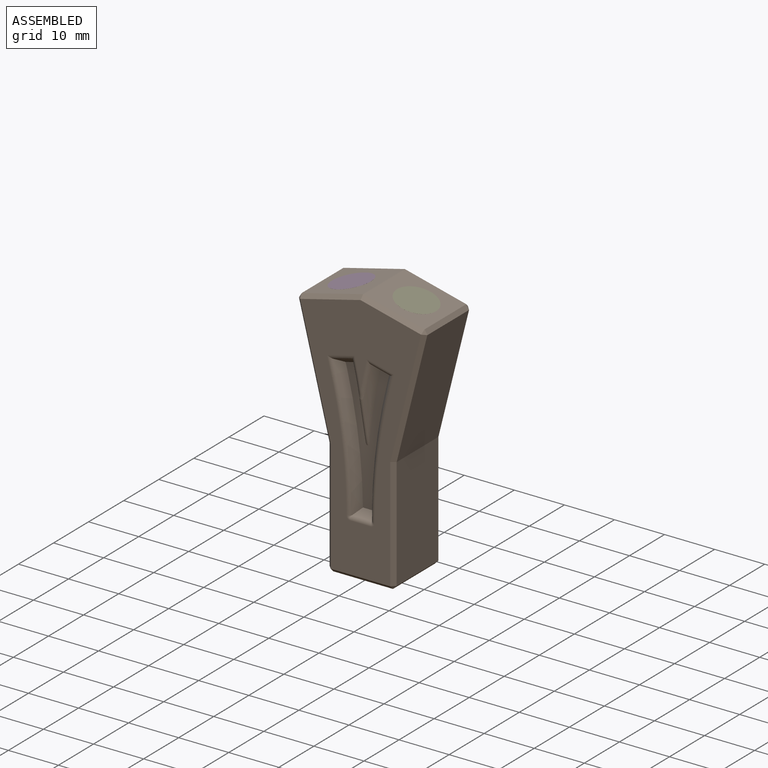
[diagram: assembled view]
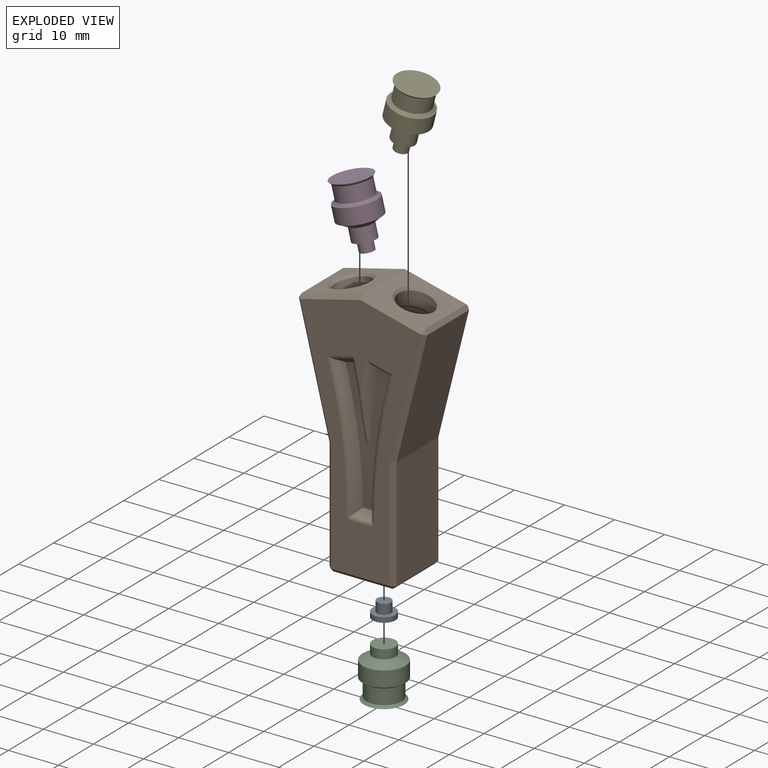
[diagram: exploded view]
GUIDED TOUR — FREECAD ASSEMBLY "Y splitter"

This assembly has 5 components, labeled P0..P4 below (a component is one placed body or linked part; the same part can appear more than once), held together by 0 modeled joints plus 5 derived contact edges. A joint is a constraint between two components; its type names the relative motion it leaves free:
  CONTACT — a derived adjacency edge — the two components touch in the source model (clearance under 2% of the assembly's diagonal); it is measured from the geometry, not a modeled constraint.
Axis/direction vectors are unit vectors and 'through' points are millimeter coordinates, both in the assembly's world frame.

MATES
  1. CONTACT "contact_0_1": P0 <-> P1, contact direction (0.000, 0.000, 1.000) through (-1.40, 0.07, 11.00) mm (derived from contact, not a modeled constraint)
  2. CONTACT "contact_0_2": P0 <-> P2, contact direction (0.000, 0.000, -1.000) through (2.30, -0.11, 10.00) mm (derived from contact, not a modeled constraint)
  3. CONTACT "contact_1_2": P1 <-> P2, contact direction (0.000, 0.000, -1.000) through (3.50, 0.00, 0.49) mm (derived from contact, not a modeled constraint)
  4. CONTACT "contact_1_3": P1 <-> P3, contact direction (0.000, 0.000, 1.000) through (-9.77, 0.17, 48.68) mm (derived from contact, not a modeled constraint)
  5. CONTACT "contact_1_4": P1 <-> P4, contact direction (0.000, 0.000, 1.000) through (9.71, 0.69, 48.69) mm (derived from contact, not a modeled constraint)

ASSEMBLY ORDER
  1. P1 — the base component [order heuristic]
  2. P3 — core [order heuristic]
  3. P4 — core [order heuristic]
  4. P0 [order verified]
  5. P2 — core [order heuristic]
Order-tag legend:
  [order verified] — this step's position reverses a verified removal order: the component was checked to insert without passing through the ones already placed.
  [order heuristic] — the first 4 components form the assembly's core: parts whose collision-free extraction could not be verified, listed in mate-graph order.

Of the 5 components, 2 carry a construction recipe — the FreeCAD feature program (sketches with constraints, then the solid features that consume them) that regenerates the part from scratch, quoted from this document or from the linked companion document it references; the rest are supplied as boundary geometry only. The tour below walks the components in assembly order: each is shown spotlighted twice — in the assembled view, then in the exploded view, where a leader line traces a displaced component back to its assembled socket (components that stay in place when exploded have no leader line; saturated green if recipe-attached, orange if geometry-only; every other component desaturated gray) — followed by its recipe or geometry summary and the mates that hold it.
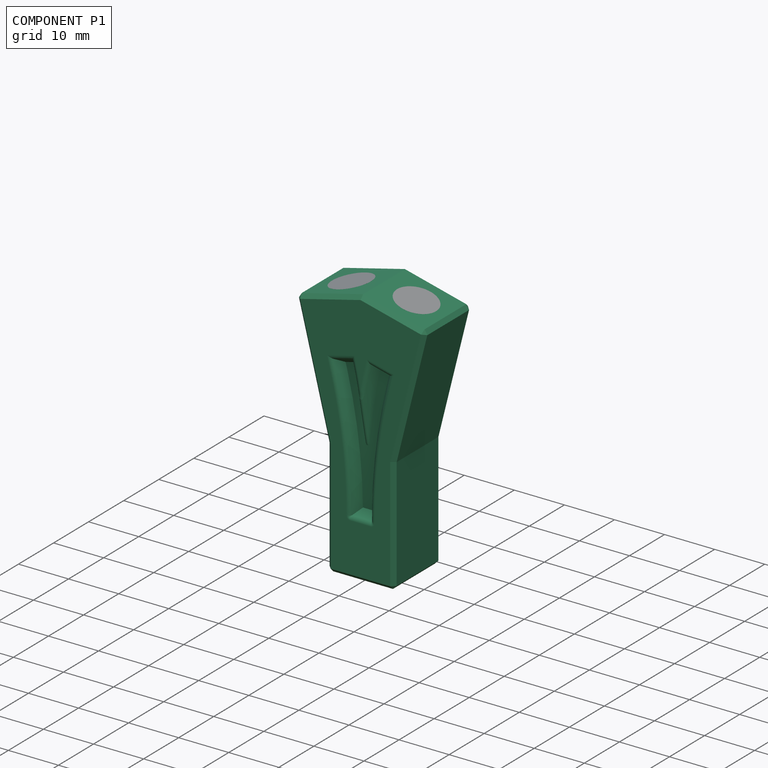
[diagram: component P1 — assembled]
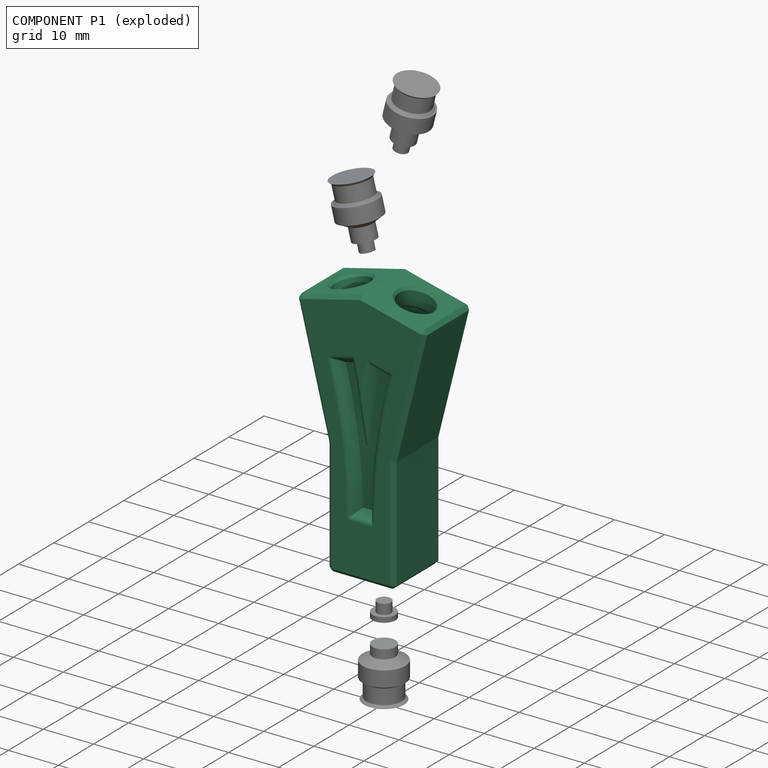
[diagram: component P1 — exploded]
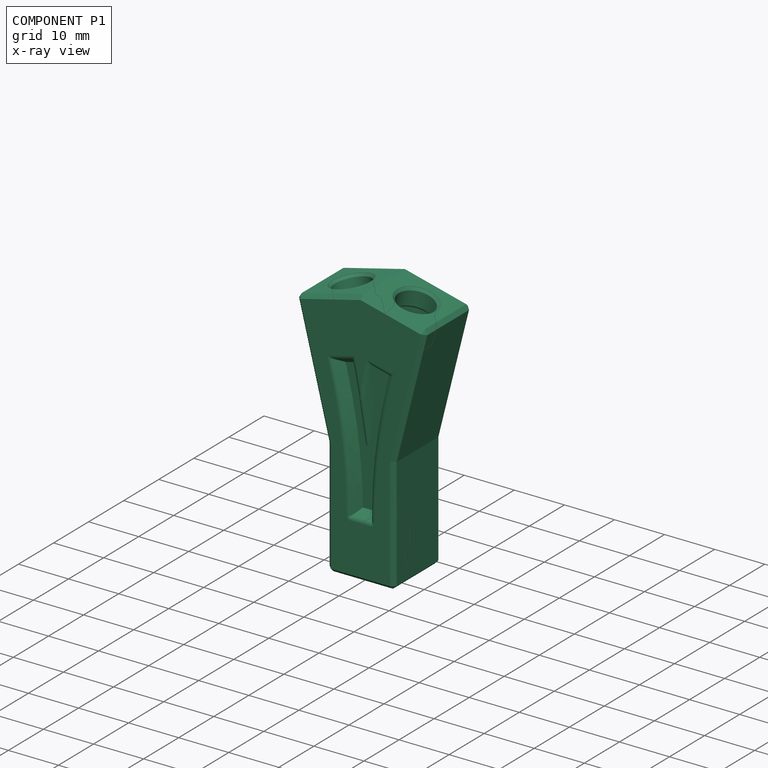
[diagram: component P1 — x-ray view]
COMPONENT P1 — recipe-attached ("Y splitter", modeled in this document).
Held by: resting contact with P0 (derived edge); resting contact with P2 (derived edge); resting contact with P3 (derived edge); resting contact with P4 (derived edge).
Construction recipe (the document's own serialized feature program — sketch geometry with constraints, then the solid features built on it; lengths are millimeters unless a unit is written):

FEATURE [Sketcher::SketchObject] Sketch004
  ArcFitTolerance = 1e-06
  AttachmentSupport = -> [XZ_Plane001]
  FullyConstrained = true
  MakeInternals = false
  MapMode = 5
  Placement = pos=(0,0,0) rot=(1,0,0;1.5708rad)
  sketch-geometry (4):
    g0: ArcOfCircle CenterX=11.0191 CenterY=12 CenterZ=0 NormalX=0 NormalY=0 NormalZ=1 AngleXU=0 Radius=9.61914 StartAngle=2.75732 EndAngle=3.14159
    g1: ArcOfCircle CenterX=26.5657 CenterY=5.71338 CenterZ=0 NormalX=0 NormalY=0 NormalZ=1 AngleXU=0 Radius=26.3886 StartAngle=2.61799 EndAngle=2.75732
    g2: LineSegment [constr] StartX=1.4 StartY=12 StartZ=0 EndX=2.10151 EndY=15.6061 EndZ=0
    g3: LineSegment [constr] StartX=2.10151 StartY=15.6061 StartZ=0 EndX=3.71243 EndY=18.9077 EndZ=0
  constraints (8):
    c: Tangent(g0,g-5) = 1.5708
    c: Tangent(g1,g-6) = 1.5708
    c: Tangent(g0,g1) = -1.5708
    c: Coincident(g2,g0)
    c: Coincident(g2,g0)
    c: Coincident(g3,g0)
    c: Coincident(g3,g1)
    c: Equal(g3,g2)
FEATURE [Sketcher::SketchObject] Sketch005
  ArcFitTolerance = 1e-06
  AttachmentSupport = -> [XZ_Plane001]
  FullyConstrained = true
  MakeInternals = false
  MapMode = 5
  Placement = pos=(0,0,0) rot=(1,0,0;1.5708rad)
  sketch-geometry (4):
    g0: ArcOfCircle CenterX=-26.5658 CenterY=5.71328 CenterZ=0 NormalX=0 NormalY=0 NormalZ=1 AngleXU=0 Radius=26.3888 StartAngle=0.384273 EndAngle=0.523599
    g1: ArcOfCircle CenterX=-11.0191 CenterY=12 CenterZ=0 NormalX=0 NormalY=0 NormalZ=1 AngleXU=0 Radius=9.61912 StartAngle=2e-16 EndAngle=0.384273
    g2: LineSegment [constr] StartX=-1.4 StartY=12 StartZ=0 EndX=-2.10151 EndY=15.6061 EndZ=0
    g3: LineSegment [constr] StartX=-2.10151 StartY=15.6061 StartZ=0 EndX=-3.71244 EndY=18.9077 EndZ=0
  constraints (9):
    c: Tangent(g1,g-3) = 1.5708
    c: Tangent(g0,g-4) = 1.5708
    c: Coincident(g0,g1)
    c: Tangent(g1,g0,g0) = -1.5708
    c: Coincident(g2,g1)
    c: Coincident(g2,g0)
    c: Coincident(g3,g0)
    c: Coincident(g3,g0)
    c: Equal(g2,g3)
FEATURE [PartDesign::SubShapeBinder] Binder001
  BindCopyOnChange = 0
  BindMode = 0
  ClaimChildren = false
  Context = -> Body001 [Binder001.]
  Fuse = false
  MakeFace = true
  OffsetFill = false
  OffsetIntersection = false
  OffsetJoinType = 0
  OffsetOpenResult = false
  PartialLoad = false
  Refine = true
  Relative = true
  Support = -> [Fusion[Face1]]
  _Version = 2
FEATURE [PartDesign::SubShapeBinder] Binder002
  BindCopyOnChange = 0
  BindMode = 0
  ClaimChildren = false
  Context = -> Body001 [Binder002.]
  Fuse = false
  MakeFace = true
  OffsetFill = false
  OffsetIntersection = false
  OffsetJoinType = 0
  OffsetOpenResult = false
  PartialLoad = false
  Refine = true
  Relative = true
  Support = -> [Link001[Face1]]
  _Version = 2
FEATURE [PartDesign::SubShapeBinder] Binder003
  BindCopyOnChange = 0
  BindMode = 0
  ClaimChildren = false
  Context = -> Body001 [Binder003.]
  Fuse = false
  MakeFace = true
  OffsetFill = false
  OffsetIntersection = false
  OffsetJoinType = 0
  OffsetOpenResult = false
  PartialLoad = false
  Refine = true
  Relative = true
  Support = -> [Link002[Face1]]
  _Version = 2
FEATURE [Sketcher::SketchObject] Sketch003
  ArcFitTolerance = 1e-06
  AttachmentSupport = -> [XZ_Plane001]
  ExternalGeometry = -> [Binder002,Binder003,Binder001]
  FullyConstrained = true
  MakeInternals = false
  MapMode = 5
  Placement = pos=(0,0,0) rot=(1,0,0;1.5708rad)
  sketch-geometry (18):
    g0: LineSegment StartX=-12.9952 StartY=48.3703 StartZ=0 EndX=-10.3691 EndY=49.025 EndZ=0
    g1: LineSegment StartX=-10.3691 StartY=49.025 StartZ=0 EndX=-2.6261 EndY=50.9556 EndZ=0
    g2: LineSegment StartX=-2.6261 StartY=50.9556 StartZ=0 EndX=0 EndY=51.6103 EndZ=0
    g3: LineSegment StartX=0 StartY=51.6103 StartZ=0 EndX=2.6261 EndY=50.9556 EndZ=0
    g4: LineSegment StartX=2.6261 StartY=50.9556 StartZ=0 EndX=10.3691 EndY=49.025 EndZ=0
    g5: LineSegment StartX=10.3691 StartY=49.025 StartZ=0 EndX=12.9952 EndY=48.3703 EndZ=0
    g6: LineSegment [constr] StartX=10.3691 StartY=49.025 StartZ=0 EndX=10.3715 EndY=49.0347 EndZ=0
    g7: LineSegment [constr] StartX=2.6261 StartY=50.9556 StartZ=0 EndX=2.62852 EndY=50.9653 EndZ=0
    g8: LineSegment [constr] StartX=-2.6261 StartY=50.9556 StartZ=0 EndX=-2.62852 EndY=50.9653 EndZ=0
    g9: LineSegment [constr] StartX=-10.3691 StartY=49.025 StartZ=0 EndX=-10.3715 EndY=49.0347 EndZ=0
    g10: LineSegment StartX=-6.6965 StartY=0.01 StartZ=0 EndX=-3.99 EndY=0.01 EndZ=0
    g11: LineSegment StartX=-3.99 StartY=0.01 StartZ=0 EndX=3.99 EndY=0.01 EndZ=0
    g12: LineSegment StartX=3.99 StartY=0.01 StartZ=0 EndX=6.6965 EndY=0.01 EndZ=0
    g13: LineSegment [constr] StartX=3.99 StartY=0 StartZ=0 EndX=3.99 EndY=0.01 EndZ=0
    g14: LineSegment StartX=6.6965 StartY=0.01 StartZ=0 EndX=6.6965 EndY=23.1077 EndZ=0
    g15: LineSegment StartX=12.9952 StartY=48.3703 StartZ=0 EndX=6.6965 EndY=23.1077 EndZ=0
    g16: LineSegment StartX=-12.9952 StartY=48.3703 StartZ=0 EndX=-6.6965 EndY=23.1077 EndZ=0
    g17: LineSegment StartX=-6.6965 StartY=23.1077 StartZ=0 EndX=-6.6965 EndY=0.01 EndZ=0
  constraints (51):
    c: Coincident(g2,g1)
    c: PointOnObject(g2,g-2)
    c: Coincident(g3,g2)
    c: Coincident(g4,g3)
    c: Coincident(g5,g4)
    c: Parallel(g5,g4)
    c: Parallel(g4,g3)
    c: Parallel(g2,g1)
    c: Parallel(g1,g0)
    c: Coincident(g0,g1)
    c: Coincident(g6,g4)
    c: Coincident(g6,g-4)
    c: Coincident(g7,g3)
    c: Coincident(g7,g-4)
    c: Coincident(g8,g1)
    c: Coincident(g8,g-3)
    c: Coincident(g9,g0)
    c: Coincident(g9,g-3)
    c: Parallel(g1,g-3)
    c: Parallel(g4,g-4)
    c: Perpendicular(g1,g9)
    c: Perpendicular(g1,g8)
    c: Perpendicular(g4,g7)
    c: Perpendicular(g4,g6)
    c: Equal(g3,g5)
    c: Horizontal(g10)
    c: Coincident(g11,g10)
    c: Horizontal(g11)
    c: Coincident(g12,g11)
    c: Horizontal(g12)
    c: Vertical(g10,g-5)
    c: Vertical(g-5,g11)
    c: Equal(g12,g10)
    c: Equal(g10,g5)
    c: Coincident(g13,g-5)
    c: Coincident(g13,g11)
    c: Coincident(g14,g12)
    c: Vertical(g14)
    c: Coincident(g15,g5)
    c: Coincident(g15,g14)
    c: Perpendicular(g15,g5)
    c: Equal(g0,g2)
    c: Coincident(g16,g0)
    c: Coincident(g17,g16)
    c: Coincident(g17,g10)
    c: Vertical(g17)
    c: Equal(g17,g14)
    c: Equal(g13,g7)
    c: DistanceY(g13,g13) = 0.01
    c: Distance(g12,g12) = 2.7065
    c: Distance(g10,g12) = 13.393  'height'
FEATURE [PartDesign::Pad] Pad002
  Direction = (0,-1,2e-16)
  Length = 6.6965
  Length2 = 10
  Placement = pos=(0,0,0) rot=(1,0,0;1.5708rad)
  Profile = -> Sketch003
  ReferenceAxis = -> Sketch003 [N_Axis]
  Refine = true
  Reversed = true
  Suppressed = false
  Type = 0
  expr: Length = <<Sketch003>>.Constraints.height / 2
FEATURE [PartDesign::Boolean] Boolean
  BaseFeature = -> Pad002
  Group = -> [Binder004]
  Refine = true
  Suppressed = false
  Type = 1
  UsePlacement = true
FEATURE [PartDesign::Boolean] Boolean001
  BaseFeature = -> Boolean
  Group = -> [Binder005]
  Refine = true
  Suppressed = false
  Type = 1
  UsePlacement = true
FEATURE [Sketcher::SketchObject] Sketch007
  ArcFitTolerance = 1e-06
  AttachmentSupport = -> [XZ_Plane001]
  ExternalGeometry = -> [Boolean001]
  FullyConstrained = true
  MakeInternals = false
  MapMode = 5
  Placement = pos=(0,0,0) rot=(1,0,0;1.5708rad)
  sketch-geometry (2):
    g0: ArcOfCircle CenterX=89.0171 CenterY=13 CenterZ=0 NormalX=0 NormalY=0 NormalZ=1 AngleXU=0 Radius=87.6171 StartAngle=2.89725 EndAngle=3.14159
    g1: LineSegment StartX=4.71343 StartY=37.0475 StartZ=0 EndX=4.0026 EndY=34.1965 EndZ=0
  constraints (4):
    c: Tangent(g0,g-4) = 1.5708
    c: Coincident(g1,g-3)
    c: Parallel(g-3,g1)
    c: Tangent(g1,g0) = -1.5708
FEATURE [PartDesign::SubtractivePipe] SubtractivePipe
  AuxilleryCurvelinear = true
  AuxillerySpineTangent = false
  BaseFeature = -> Boolean001
  Binormal = (0,0,0)
  Mode = 0
  Profile = -> Boolean001 [Face31]
  Refine = true
  Spine = -> Sketch007
  SpineTangent = false
  Suppressed = false
  Transformation = 0
  Transition = 0
FEATURE [Sketcher::SketchObject] Sketch008
  ArcFitTolerance = 1e-06
  AttachmentSupport = -> [XZ_Plane001]
  FullyConstrained = false
  MakeInternals = false
  MapMode = 5
  Placement = pos=(0,0,0) rot=(1,0,0;1.5708rad)
  sketch-geometry (4):
    g0: LineSegment StartX=0 StartY=-5.19196 StartZ=0 EndX=0 EndY=56.8249 EndZ=0
    g1: LineSegment StartX=0 StartY=56.8249 StartZ=0 EndX=-56.2911 EndY=56.8249 EndZ=0
    g2: LineSegment StartX=-56.2911 StartY=56.8249 StartZ=0 EndX=-56.2911 EndY=-5.19196 EndZ=0
    g3: LineSegment StartX=-56.2911 StartY=-5.19196 StartZ=0 EndX=0 EndY=-5.19196 EndZ=0
  constraints (9):
    c: Coincident(g0,g1)
    c: Coincident(g1,g2)
    c: Coincident(g2,g3)
    c: Coincident(g3,g0)
    c: Vertical(g0)
    c: Vertical(g2)
    c: Horizontal(g1)
    c: Horizontal(g3)
    c: PointOnObject(g0,g-2)
FEATURE [PartDesign::Pocket] Pocket
  BaseFeature = -> SubtractivePipe
  Direction = (0,1,-2e-16)
  Length = 5
  Length2 = 5
  Midplane = true
  Profile = -> Sketch008
  ReferenceAxis = -> Sketch008 [N_Axis]
  Refine = true
  Suppressed = false
  Type = 1
FEATURE [PartDesign::Mirrored] Mirrored
  BaseFeature = -> Pocket
  MirrorPlane = -> YZ_Plane001
  Refine = true
  Suppressed = false
  TransformMode = 1
FEATURE [Sketcher::SketchObject] Sketch009
  ArcFitTolerance = 1e-06
  AttachmentSupport = -> [Mirrored]
  ExternalGeometry = -> [Mirrored]
  FullyConstrained = true
  MakeInternals = false
  MapMode = 5
  Placement = pos=(0,6.6965,-1.5e-15) rot=(0,0.707107,0.707107;3.14159rad)
  sketch-geometry (9):
    g0: LineSegment StartX=-1.60718 StartY=39.8832 StartZ=0 EndX=-6.07054 EndY=38.7703 EndZ=0
    g1: ArcOfCircle CenterX=-105.306 CenterY=11 CenterZ=0 NormalX=0 NormalY=0 NormalZ=1 AngleXU=0 Radius=103.006 StartAngle=0 EndAngle=0.244346
    g2: ArcOfCircle CenterX=105.306 CenterY=11 CenterZ=0 NormalX=0 NormalY=0 NormalZ=1 AngleXU=0 Radius=103.006 StartAngle=2.89725 EndAngle=3.14159
    g3: LineSegment StartX=5.35971 StartY=35.9194 StartZ=0 EndX=6.07054 EndY=38.7703 EndZ=0
    g4: LineSegment StartX=-5.35971 StartY=35.9194 StartZ=0 EndX=-6.07054 EndY=38.7703 EndZ=0
    g5: LineSegment StartX=1.60718 StartY=39.8832 StartZ=0 EndX=6.07054 EndY=38.7703 EndZ=0
    g6: ArcOfCircle CenterX=-101.553 CenterY=14.9638 CenterZ=0 NormalX=0 NormalY=0 NormalZ=1 AngleXU=0 Radius=103.006 StartAngle=0.168135 EndAngle=0.244346
    g7: ArcOfCircle CenterX=101.553 CenterY=14.9638 CenterZ=0 NormalX=0 NormalY=0 NormalZ=1 AngleXU=0 Radius=103.006 StartAngle=2.89725 EndAngle=2.97346
    g8: LineSegment StartX=-2.3 StartY=11 StartZ=0 EndX=2.3 EndY=11 EndZ=0
  constraints (21):
    c: Coincident(g0,g-7)
    c: Coincident(g0,g-3)
    c: Tangent(g-6,g2) = -1.5708
    c: Tangent(g-9,g1) = 1.5708
    c: Coincident(g3,g-4)
    c: Coincident(g4,g0)
    c: Coincident(g5,g-8)
    c: Coincident(g5,g3)
    c: Tangent(g3,g2) = 1.5708
    c: Tangent(g4,g1) = -1.5708
    c: Parallel(g-3,g4)
    c: Coincident(g6,g0)
    c: Coincident(g7,g5)
    c: Coincident(g7,g6)
    c: PointOnObject(g6,g-2)
    c: Equal(g6,g7)
    c: Equal(g7,g1)
    c: Coincident(g8,g1)
    c: Coincident(g8,g2)
    c: Parallel(g3,g-4)
    c: Perpendicular(g7,g5)
FEATURE [PartDesign::Pocket] Pocket001
  BaseFeature = -> Mirrored
  Direction = (0,-1,2e-16)
  Length = 2
  Length2 = 5
  Profile = -> Sketch009
  ReferenceAxis = -> Sketch009 [N_Axis]
  Refine = true
  Suppressed = false
  TaperAngle = -35
  Type = 0
FEATURE [PartDesign::Fillet] Fillet
  Base = -> Pocket001 [Edge45,Edge47,Edge39,Edge41,Edge43,Edge44,Edge40]
  BaseFeature = -> Pocket001
  Radius = 1
  Refine = true
  SupportTransform = false
  Suppressed = false
  UseAllEdges = false
FEATURE [PartDesign::Mirrored] Mirrored001
  BaseFeature = -> Fillet
  MirrorPlane = -> XZ_Plane001
  Originals = -> [Fillet]
  Refine = true
  Suppressed = false
  TransformMode = 1
FEATURE [PartDesign::Chamfer] Chamfer
  Angle = 45
  Base = -> Mirrored001 [Edge130,Edge128,Edge132,Edge131,Edge129,Edge127,Edge111,Edge109,Edge110,Edge183,Edge59,Edge61,Edge63,Edge65,Edge64,Edge62,Edge60,Edge182]
  BaseFeature = -> Mirrored001
  ChamferType = 0
  FlipDirection = false
  Refine = true
  Size = 0.75
  Size2 = 1
  SupportTransform = false
  Suppressed = false
  UseAllEdges = false
FEATURE [PartDesign::Fillet] Fillet001
  Base = -> Chamfer [Edge216,Edge97]
  BaseFeature = -> Chamfer
  Radius = 0.5
  Refine = true
  SupportTransform = false
  Suppressed = false
  UseAllEdges = false
FEATURE [PartDesign::Body] Body001  label="Y splitter"
  AllowCompound = true
  Group = -> [Sketch003,Sketch004,Sketch005,Binder001,Binder002,Binder003,Pad002,Boolean,Boolean001,Sketch007,SubtractivePipe,Sketch008,Pocket,Mirrored,Sketch009,Pocket001,Fillet,Mirrored001,Chamfer,Fillet001]
  Origin = -> Origin001
  Tip = -> Fillet001
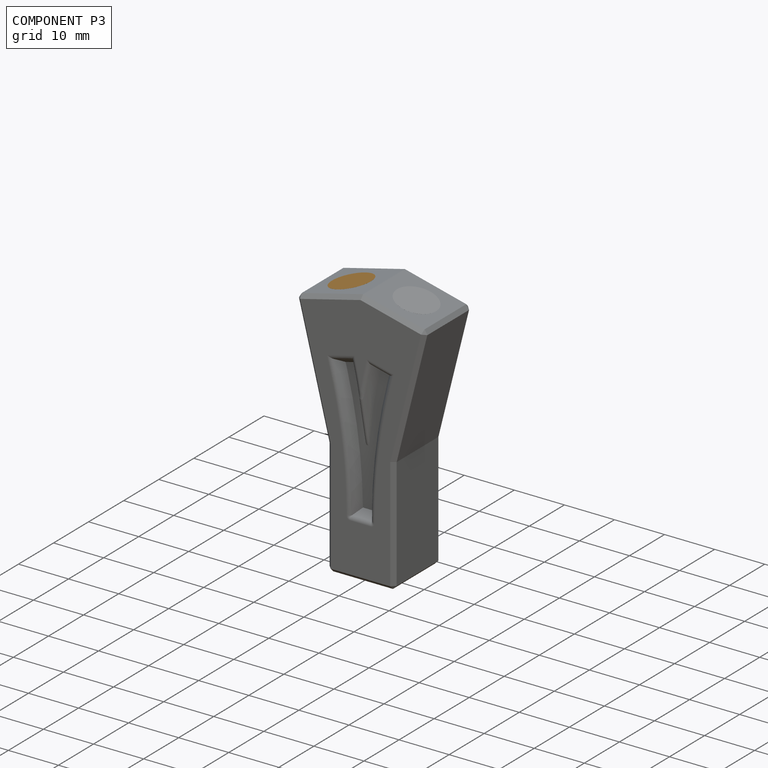
[diagram: component P3 — assembled]
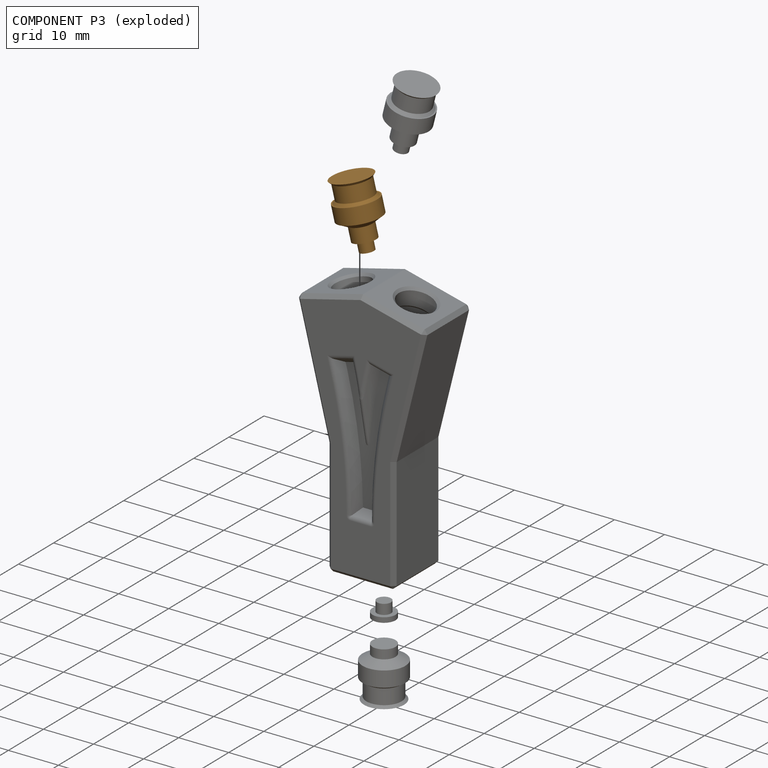
[diagram: component P3 — exploded]
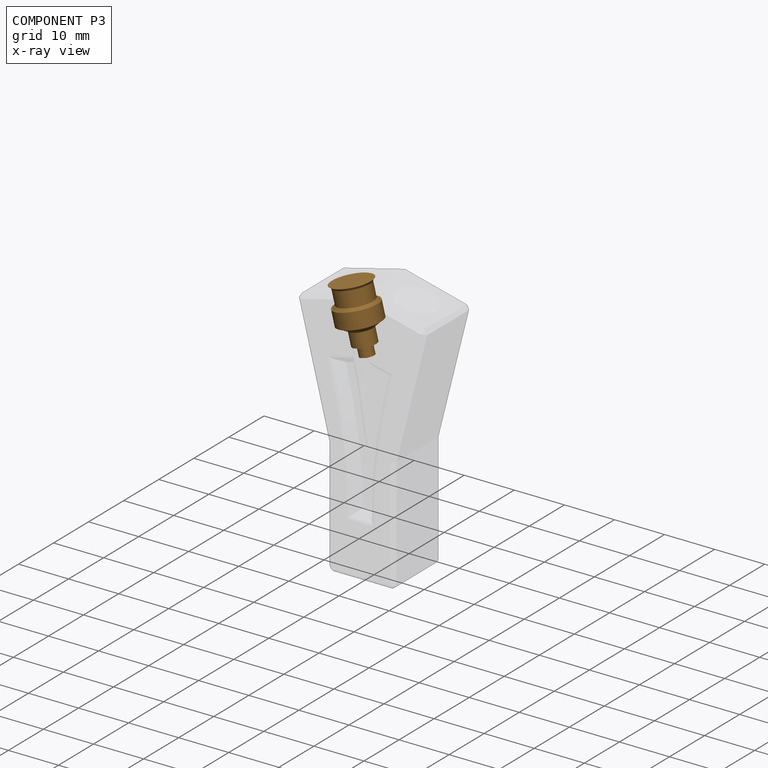
[diagram: component P3 — x-ray view]
COMPONENT P3 — geometry summary ("socket-cut-w-filament001"; no construction recipe available for this part):
  bounding box: 13.9 x 9.7 x 8.5 mm
  tessellated surface: 3,650 triangles
  volume: 432 mm^3 (38% of its bounding box)
  symmetry: mirror-symmetric across its y mid-plane
Held by: resting contact with P1 (derived edge).
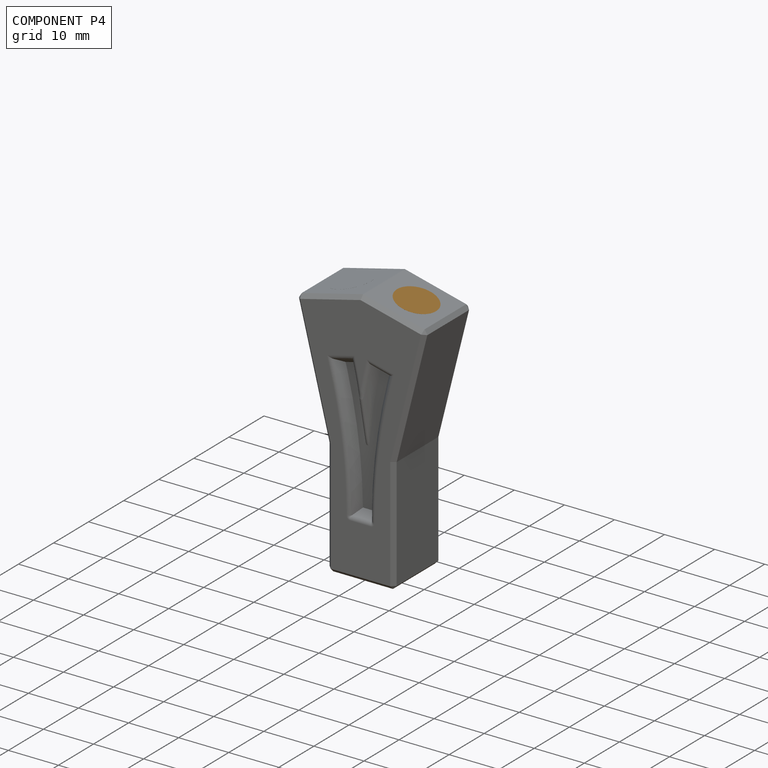
[diagram: component P4 — assembled]
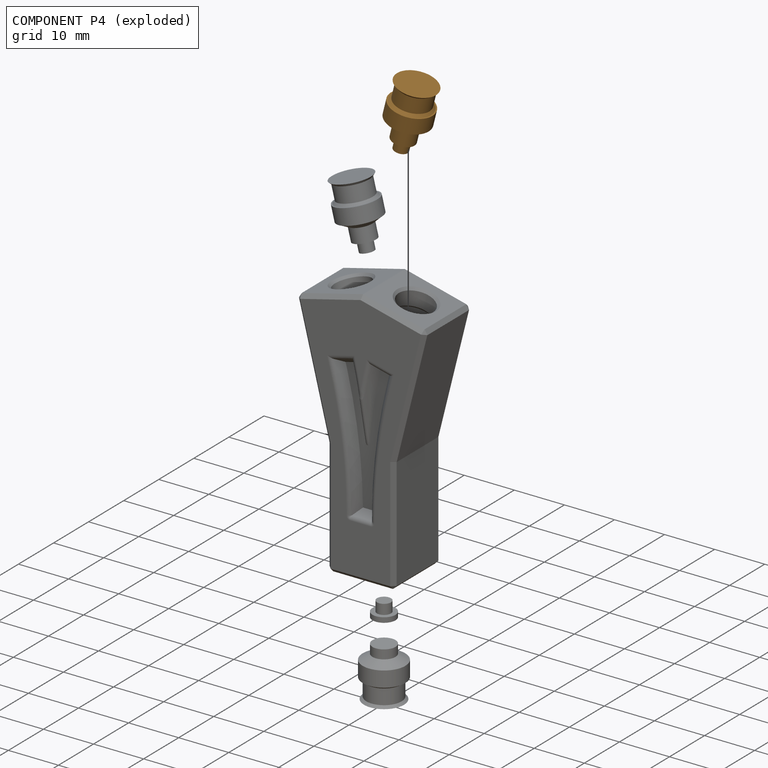
[diagram: component P4 — exploded]
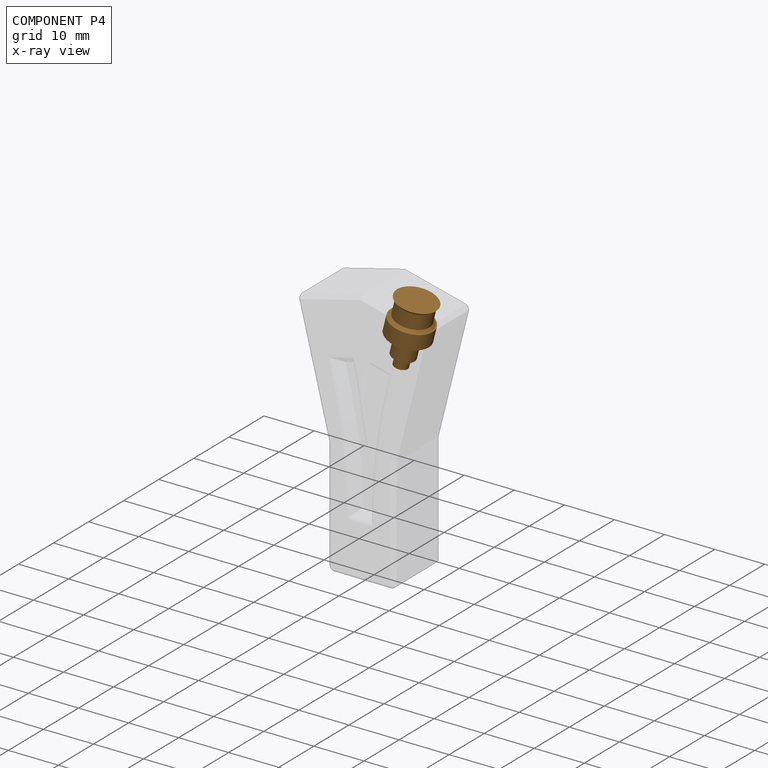
[diagram: component P4 — x-ray view]
COMPONENT P4 — geometry summary ("socket-cut-w-filament002"; no construction recipe available for this part):
  bounding box: 13.9 x 9.7 x 8.5 mm
  tessellated surface: 3,650 triangles
  volume: 432 mm^3 (38% of its bounding box)
  symmetry: mirror-symmetric across its y mid-plane
Held by: resting contact with P1 (derived edge).
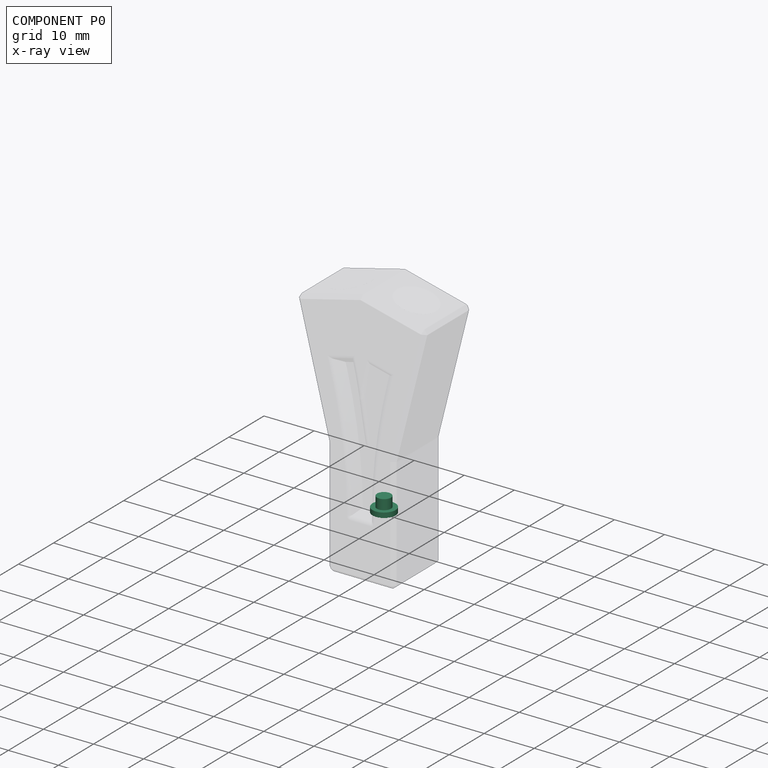
[diagram: component P0 — x-ray view]
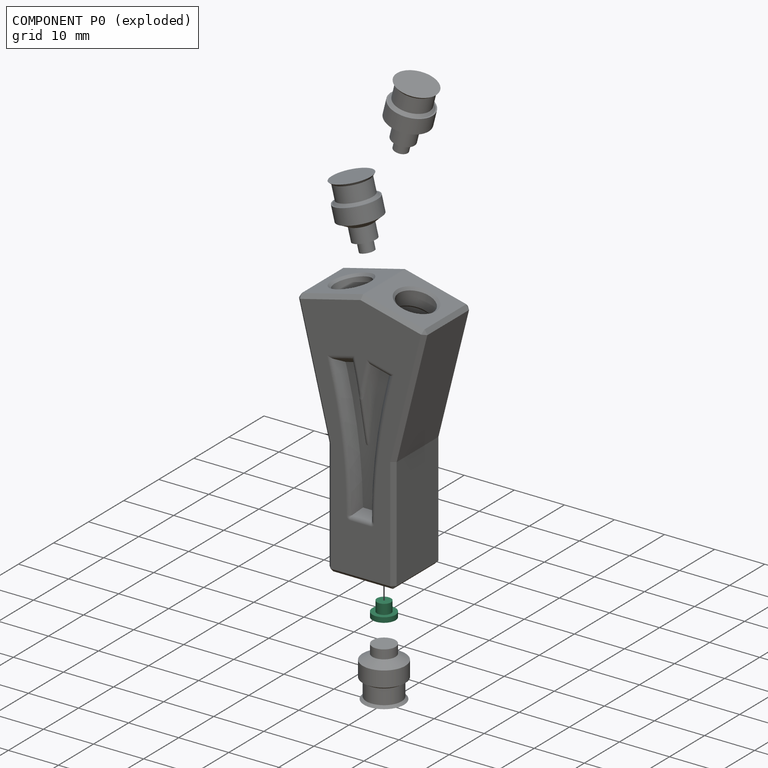
[diagram: component P0 — exploded]
COMPONENT P0 — recipe-attached ("Body", modeled in this document).
Held by: resting contact with P1 (derived edge); resting contact with P2 (derived edge).
Construction recipe (the document's own serialized feature program — sketch geometry with constraints, then the solid features built on it; lengths are millimeters unless a unit is written):

FEATURE [PartDesign::SubShapeBinder] Binder
  BindCopyOnChange = 0
  BindMode = 0
  ClaimChildren = false
  Context = -> Body [Binder.]
  Fuse = false
  MakeFace = true
  OffsetFill = false
  OffsetIntersection = false
  OffsetJoinType = 0
  OffsetOpenResult = false
  PartialLoad = false
  Refine = true
  Relative = true
  Support = -> [Link[Face10]]
  _Version = 2
FEATURE [PartDesign::Pad] Pad
  Direction = (0,0,1)
  Length = 1
  Length2 = 10
  Profile = -> Binder
  Refine = true
  Suppressed = false
  Type = 0
FEATURE [Sketcher::SketchObject] Sketch
  ArcFitTolerance = 1e-06
  AttachmentSupport = -> [Pad]
  FullyConstrained = true
  MakeInternals = false
  MapMode = 5
  Placement = pos=(0,0,11) rot=(0,0,1;0rad)
  sketch-geometry (1):
    g0: Circle CenterX=0 CenterY=0 CenterZ=0 NormalX=0 NormalY=0 NormalZ=1 AngleXU=0 Radius=1.4
  constraints (2):
    c: Diameter(g0) = 2.8
    c: Coincident(g0,g-1)
FEATURE [PartDesign::Pad] Pad001
  BaseFeature = -> Pad
  Direction = (0,0,1)
  Length = 2
  Length2 = 10
  Profile = -> Sketch
  ReferenceAxis = -> Sketch [N_Axis]
  Refine = true
  Suppressed = false
  Type = 0
FEATURE [PartDesign::Body] Body
  AllowCompound = true
  Group = -> [Binder,Pad,Sketch,Pad001]
  Origin = -> Origin
  Tip = -> Pad001
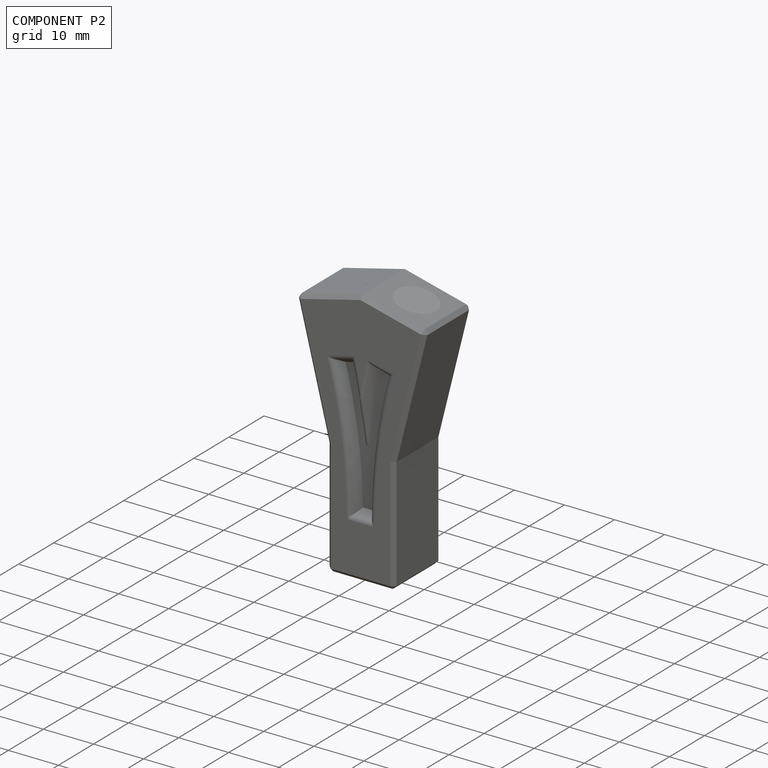
[diagram: component P2 — assembled]
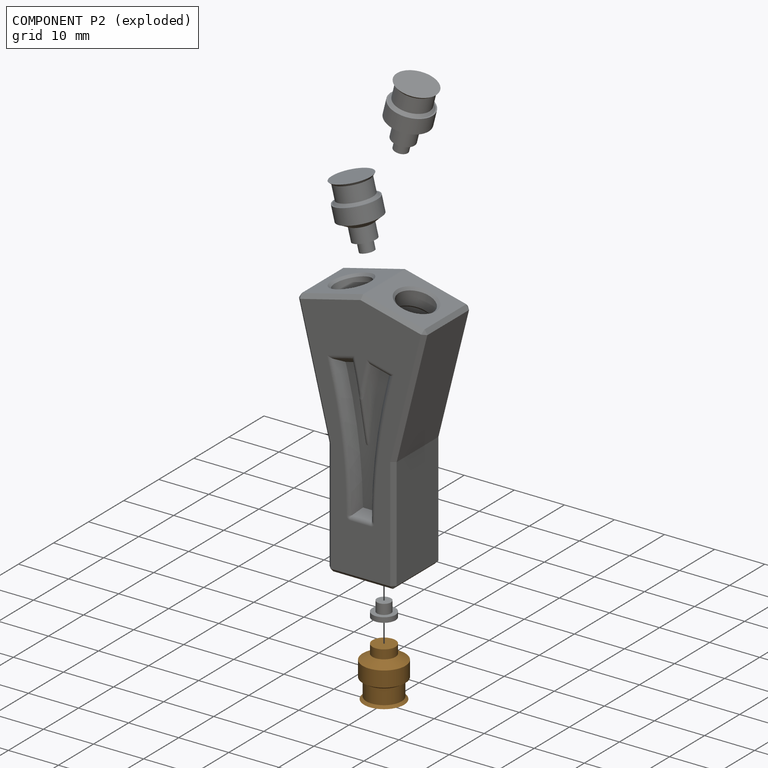
[diagram: component P2 — exploded]
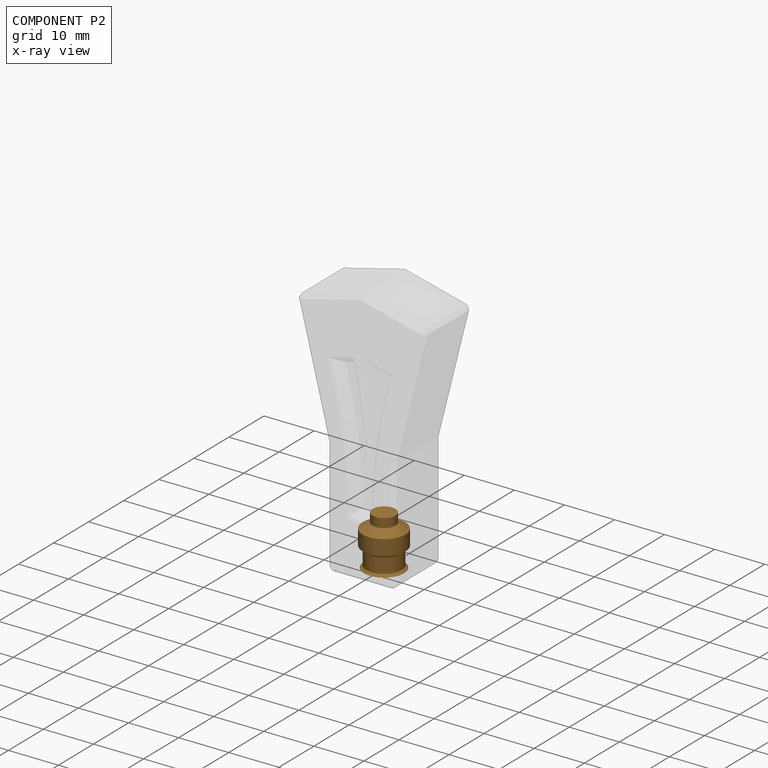
[diagram: component P2 — x-ray view]
COMPONENT P2 — geometry summary ("socket-Cut"; no construction recipe available for this part):
  bounding box: 10.0 x 8.5 x 8.5 mm
  tessellated surface: 2,894 triangles
  volume: 403 mm^3 (56% of its bounding box)
  symmetry: revolution-symmetric about the z axis through its bounding-box center; mirror-symmetric across its x mid-plane, y mid-plane
Held by: resting contact with P0 (derived edge); resting contact with P1 (derived edge).
PROVENANCE & LICENSES
Assembly and component geometry: a FreeCAD (.FCStd) document from a public repository crawl; components, placements and joints were extracted with FreeCAD and each solid tessellated.
Construction recipes: the document's own serialized feature recipes (and, for linked parts, the recipes of companion documents from the same project).
License: as declared in the source repository (recorded in the dataset sidecar).
Joints: native FreeCAD joints and A2plus constraints are mapped to standard mate types; edges marked 'derived from contact' connect touching components and are measured from the geometry, not modeled.
Verification: 2 of this assembly's 5 components carry a construction recipe (2 from this document itself); the rest are geometry-only. Every component's tessellation passed the extraction mesh gates (mesh-volume checksum against the B-rep where available, bounding-box inflation <= 2%).
Renders: orthographic iso camera (az 35 / el 25); the floor grid conveys scale (grid pitch printed in each image; no ruler). In the exploded view each component is displaced by its stored offset vector: the offsets alone carry the explosion direction (mate normal/axis signs are not orientation cues and do not encode it), and separation distances are assigned per mate-chain, not proportionally to assembly-order depth.
